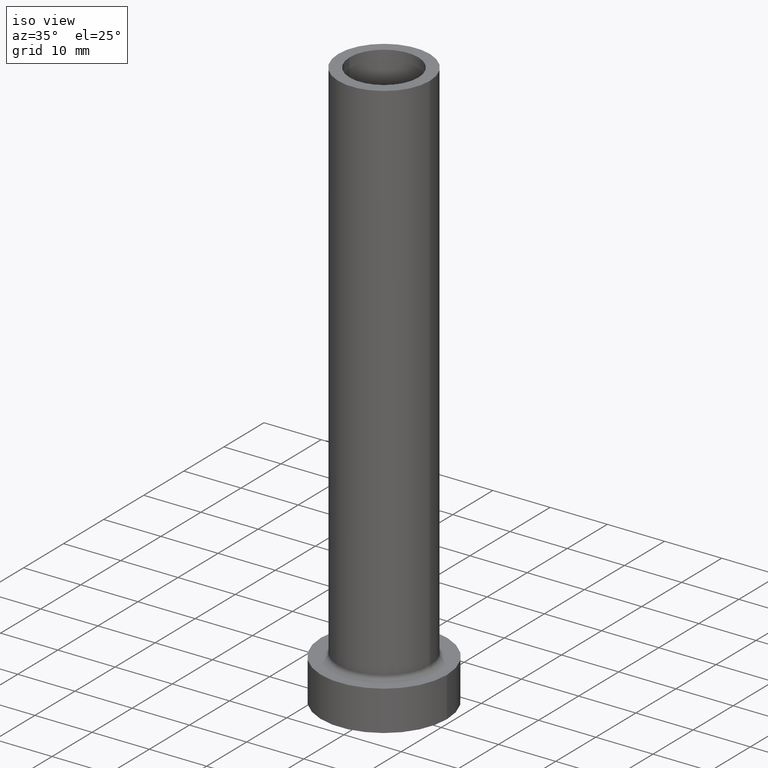
[diagram: clean part render]
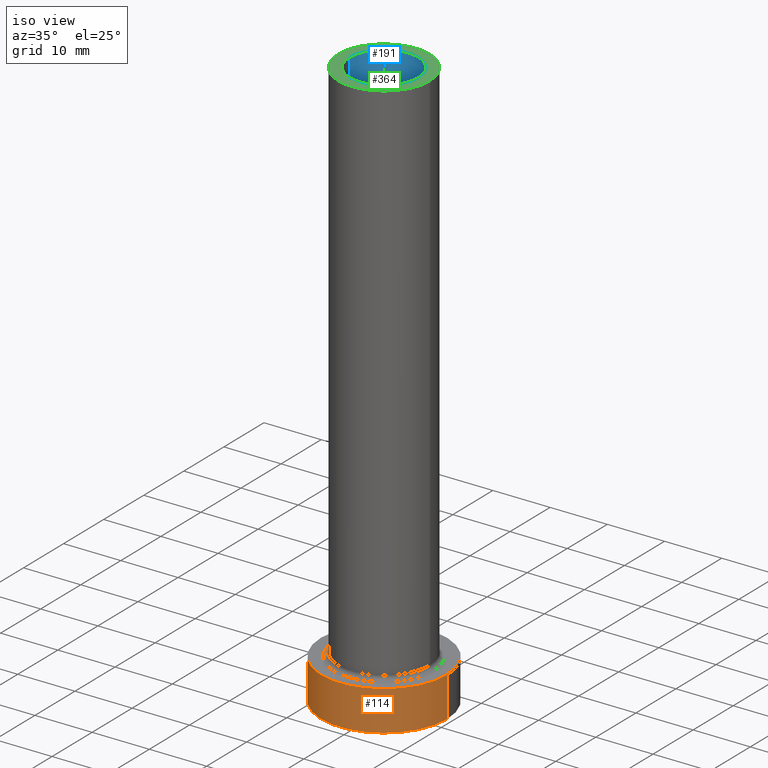
[diagram: same view with three faces highlighted in distinct colors, each labeled with its STEP entity id]
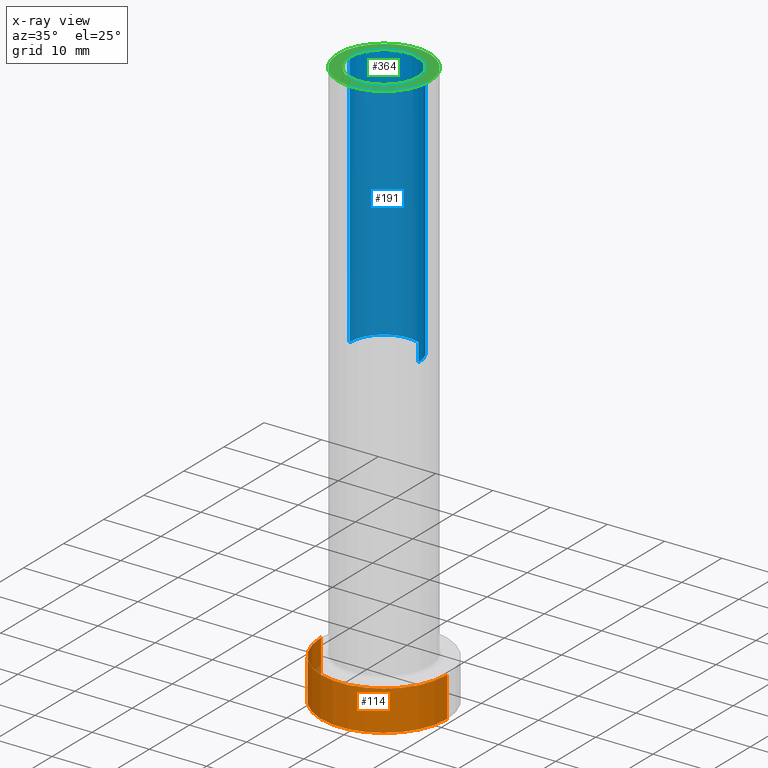
[diagram: x-ray of the same camera — body ghosted, the three highlighted faces saturated]
A machine part, iso view with three faces highlighted in distinct colors.
The next image is the same camera in x-ray (body ghosted, the three faces saturated) — at least one of them is partly hidden behind the body in this view.
Their STEP definitions:

[orange] entity #114 — the highlighted cylindrical surface (partial cylindrical patch) has radius 11 mm, axis along (-0, -0, -1).
#5 = LINE ( 'NONE', #253, #378 ) ;
#11 = VERTEX_POINT ( 'NONE', #305 ) ;
#17 = DIRECTION ( 'NONE',  ( 0.000000000000000000, 0.000000000000000000, 1.000000000000000000 ) ) ;
#45 = VERTEX_POINT ( 'NONE', #363 ) ;
#61 = EDGE_CURVE ( 'NONE', #126, #320, #243, .T. ) ;
#69 = AXIS2_PLACEMENT_3D ( 'NONE', #429, #327, #351 ) ;
#103 = CARTESIAN_POINT ( 'NONE',  ( -11.00000000000000000, 0.000000000000000000, 7.000000000000000000 ) ) ;
#109 = EDGE_CURVE ( 'NONE', #126, #45, #192, .T. ) ;
#114 = ADVANCED_FACE ( 'NONE', ( #331 ), #258, .T. ) ;
#126 = VERTEX_POINT ( 'NONE', #103 ) ;
#150 = CARTESIAN_POINT ( 'NONE',  ( 11.00000000000000000, 1.347111479062088405E-15, 7.000000000000000000 ) ) ;
#159 = CARTESIAN_POINT ( 'NONE',  ( 0.000000000000000000, 0.000000000000000000, 7.000000000000000000 ) ) ;
#192 = LINE ( 'NONE', #439, #310 ) ;
#232 = EDGE_LOOP ( 'NONE', ( #428, #354, #328, #256 ) ) ;
#243 = CIRCLE ( 'NONE', #448, 11.00000000000000000 ) ;
#253 = CARTESIAN_POINT ( 'NONE',  ( 11.00000000000000000, 1.347111479062088405E-15, 7.000000000000000000 ) ) ;
#256 = ORIENTED_EDGE ( 'NONE', *, *, #292, .T. ) ;
#258 = CYLINDRICAL_SURFACE ( 'NONE', #276, 11.00000000000000000 ) ;
#268 = DIRECTION ( 'NONE',  ( -1.000000000000000000, 0.000000000000000000, 0.000000000000000000 ) ) ;
#276 = AXIS2_PLACEMENT_3D ( 'NONE', #159, #415, #268 ) ;
#281 = DIRECTION ( 'NONE',  ( -0.000000000000000000, -0.000000000000000000, -1.000000000000000000 ) ) ;
#292 = EDGE_CURVE ( 'NONE', #45, #11, #349, .T. ) ;
#305 = CARTESIAN_POINT ( 'NONE',  ( 11.00000000000000000, 1.347111479062088405E-15, 0.000000000000000000 ) ) ;
#310 = VECTOR ( 'NONE', #412, 1000.000000000000000 ) ;
#320 = VERTEX_POINT ( 'NONE', #150 ) ;
#327 = DIRECTION ( 'NONE',  ( 0.000000000000000000, 0.000000000000000000, 1.000000000000000000 ) ) ;
#328 = ORIENTED_EDGE ( 'NONE', *, *, #109, .T. ) ;
#331 = FACE_OUTER_BOUND ( 'NONE', #232, .T. ) ;
#334 = CARTESIAN_POINT ( 'NONE',  ( 0.000000000000000000, 0.000000000000000000, 7.000000000000000000 ) ) ;
#337 = DIRECTION ( 'NONE',  ( 1.000000000000000000, 0.000000000000000000, 0.000000000000000000 ) ) ;
#349 = CIRCLE ( 'NONE', #69, 11.00000000000000000 ) ;
#351 = DIRECTION ( 'NONE',  ( 1.000000000000000000, 0.000000000000000000, 0.000000000000000000 ) ) ;
#354 = ORIENTED_EDGE ( 'NONE', *, *, #61, .F. ) ;
#363 = CARTESIAN_POINT ( 'NONE',  ( -11.00000000000000000, 0.000000000000000000, 0.000000000000000000 ) ) ;
#378 = VECTOR ( 'NONE', #281, 1000.000000000000000 ) ;
#381 = EDGE_CURVE ( 'NONE', #320, #11, #5, .T. ) ;
#412 = DIRECTION ( 'NONE',  ( -0.000000000000000000, -0.000000000000000000, -1.000000000000000000 ) ) ;
#415 = DIRECTION ( 'NONE',  ( -0.000000000000000000, -0.000000000000000000, -1.000000000000000000 ) ) ;
#428 = ORIENTED_EDGE ( 'NONE', *, *, #381, .F. ) ;
#429 = CARTESIAN_POINT ( 'NONE',  ( 0.000000000000000000, 0.000000000000000000, 0.000000000000000000 ) ) ;
#439 = CARTESIAN_POINT ( 'NONE',  ( -11.00000000000000000, 0.000000000000000000, 7.000000000000000000 ) ) ;
#448 = AXIS2_PLACEMENT_3D ( 'NONE', #334, #17, #337 ) ;

[blue] entity #191 — the highlighted cylindrical surface (partial cylindrical patch) has radius 6 mm, axis along (0, 0, -1).
#3 = DIRECTION ( 'NONE',  ( 1.000000000000000000, 0.000000000000000000, 0.000000000000000000 ) ) ;
#9 = CIRCLE ( 'NONE', #139, 6.000000000000000888 ) ;
#33 = CARTESIAN_POINT ( 'NONE',  ( 0.000000000000000000, 0.000000000000000000, 55.00000000000000711 ) ) ;
#65 = EDGE_CURVE ( 'NONE', #430, #151, #163, .T. ) ;
#66 = CYLINDRICAL_SURFACE ( 'NONE', #416, 6.000000000000000888 ) ;
#90 = AXIS2_PLACEMENT_3D ( 'NONE', #33, #275, #421 ) ;
#116 = EDGE_LOOP ( 'NONE', ( #369, #223, #287, #359 ) ) ;
#131 = DIRECTION ( 'NONE',  ( 0.000000000000000000, 0.000000000000000000, -1.000000000000000000 ) ) ;
#134 = DIRECTION ( 'NONE',  ( 0.000000000000000000, 0.000000000000000000, -1.000000000000000000 ) ) ;
#139 = AXIS2_PLACEMENT_3D ( 'NONE', #285, #427, #3 ) ;
#151 = VERTEX_POINT ( 'NONE', #201 ) ;
#154 = VERTEX_POINT ( 'NONE', #340 ) ;
#163 = LINE ( 'NONE', #447, #208 ) ;
#191 = ADVANCED_FACE ( 'NONE', ( #206 ), #66, .F. ) ;
#201 = CARTESIAN_POINT ( 'NONE',  ( 6.000000000000000888, 7.347880794884119736E-16, 55.00000000000000711 ) ) ;
#206 = FACE_OUTER_BOUND ( 'NONE', #116, .T. ) ;
#208 = VECTOR ( 'NONE', #131, 1000.000000000000000 ) ;
#213 = CARTESIAN_POINT ( 'NONE',  ( 6.000000000000000888, 7.347880794884119736E-16, 100.0000000000000000 ) ) ;
#219 = CARTESIAN_POINT ( 'NONE',  ( -6.000000000000000888, 0.000000000000000000, 100.0000000000000000 ) ) ;
#223 = ORIENTED_EDGE ( 'NONE', *, *, #322, .T. ) ;
#242 = DIRECTION ( 'NONE',  ( -1.000000000000000000, 0.000000000000000000, 0.000000000000000000 ) ) ;
#275 = DIRECTION ( 'NONE',  ( 0.000000000000000000, 0.000000000000000000, 1.000000000000000000 ) ) ;
#277 = EDGE_CURVE ( 'NONE', #151, #154, #385, .T. ) ;
#285 = CARTESIAN_POINT ( 'NONE',  ( 0.000000000000000000, 0.000000000000000000, 100.0000000000000000 ) ) ;
#287 = ORIENTED_EDGE ( 'NONE', *, *, #442, .T. ) ;
#322 = EDGE_CURVE ( 'NONE', #430, #392, #9, .T. ) ;
#332 = DIRECTION ( 'NONE',  ( 0.000000000000000000, 0.000000000000000000, -1.000000000000000000 ) ) ;
#340 = CARTESIAN_POINT ( 'NONE',  ( -6.000000000000000888, 0.000000000000000000, 55.00000000000000711 ) ) ;
#355 = VECTOR ( 'NONE', #332, 1000.000000000000000 ) ;
#359 = ORIENTED_EDGE ( 'NONE', *, *, #277, .F. ) ;
#362 = LINE ( 'NONE', #401, #355 ) ;
#369 = ORIENTED_EDGE ( 'NONE', *, *, #65, .F. ) ;
#385 = CIRCLE ( 'NONE', #90, 6.000000000000000888 ) ;
#392 = VERTEX_POINT ( 'NONE', #219 ) ;
#401 = CARTESIAN_POINT ( 'NONE',  ( -6.000000000000000888, 0.000000000000000000, 100.0000000000000000 ) ) ;
#416 = AXIS2_PLACEMENT_3D ( 'NONE', #450, #134, #242 ) ;
#421 = DIRECTION ( 'NONE',  ( 1.000000000000000000, 0.000000000000000000, 0.000000000000000000 ) ) ;
#427 = DIRECTION ( 'NONE',  ( 0.000000000000000000, 0.000000000000000000, 1.000000000000000000 ) ) ;
#430 = VERTEX_POINT ( 'NONE', #213 ) ;
#442 = EDGE_CURVE ( 'NONE', #392, #154, #362, .T. ) ;
#447 = CARTESIAN_POINT ( 'NONE',  ( 6.000000000000000888, 7.347880794884119736E-16, 100.0000000000000000 ) ) ;
#450 = CARTESIAN_POINT ( 'NONE',  ( 0.000000000000000000, 0.000000000000000000, 100.0000000000000000 ) ) ;

[green] entity #364 — the highlighted planar face has unit normal (0, 0, 1).
#2 = ORIENTED_EDGE ( 'NONE', *, *, #390, .F. ) ;
#3 = DIRECTION ( 'NONE',  ( 1.000000000000000000, 0.000000000000000000, 0.000000000000000000 ) ) ;
#6 = VERTEX_POINT ( 'NONE', #13 ) ;
#9 = CIRCLE ( 'NONE', #139, 6.000000000000000888 ) ;
#13 = CARTESIAN_POINT ( 'NONE',  ( 8.000000000000000000, 9.797174393178823685E-16, 100.0000000000000000 ) ) ;
#24 = CIRCLE ( 'NONE', #152, 8.000000000000000000 ) ;
#30 = CARTESIAN_POINT ( 'NONE',  ( 0.000000000000000000, 0.000000000000000000, 100.0000000000000000 ) ) ;
#34 = DIRECTION ( 'NONE',  ( 0.000000000000000000, 0.000000000000000000, 1.000000000000000000 ) ) ;
#79 = DIRECTION ( 'NONE',  ( 1.000000000000000000, 0.000000000000000000, 0.000000000000000000 ) ) ;
#84 = AXIS2_PLACEMENT_3D ( 'NONE', #319, #34, #79 ) ;
#112 = CARTESIAN_POINT ( 'NONE',  ( 0.000000000000000000, 0.000000000000000000, 100.0000000000000000 ) ) ;
#113 = EDGE_LOOP ( 'NONE', ( #230, #162 ) ) ;
#115 = DIRECTION ( 'NONE',  ( 1.000000000000000000, 0.000000000000000000, 0.000000000000000000 ) ) ;
#119 = PLANE ( 'NONE',  #215 ) ;
#137 = CIRCLE ( 'NONE', #195, 8.000000000000000000 ) ;
#139 = AXIS2_PLACEMENT_3D ( 'NONE', #285, #427, #3 ) ;
#140 = DIRECTION ( 'NONE',  ( 1.000000000000000000, 0.000000000000000000, 0.000000000000000000 ) ) ;
#152 = AXIS2_PLACEMENT_3D ( 'NONE', #432, #177, #115 ) ;
#153 = FACE_OUTER_BOUND ( 'NONE', #113, .T. ) ;
#162 = ORIENTED_EDGE ( 'NONE', *, *, #266, .T. ) ;
#171 = DIRECTION ( 'NONE',  ( 0.000000000000000000, 0.000000000000000000, 1.000000000000000000 ) ) ;
#177 = DIRECTION ( 'NONE',  ( 0.000000000000000000, 0.000000000000000000, 1.000000000000000000 ) ) ;
#195 = AXIS2_PLACEMENT_3D ( 'NONE', #30, #171, #140 ) ;
#213 = CARTESIAN_POINT ( 'NONE',  ( 6.000000000000000888, 7.347880794884119736E-16, 100.0000000000000000 ) ) ;
#215 = AXIS2_PLACEMENT_3D ( 'NONE', #112, #250, #358 ) ;
#217 = CARTESIAN_POINT ( 'NONE',  ( -8.000000000000000000, 0.000000000000000000, 100.0000000000000000 ) ) ;
#219 = CARTESIAN_POINT ( 'NONE',  ( -6.000000000000000888, 0.000000000000000000, 100.0000000000000000 ) ) ;
#220 = ORIENTED_EDGE ( 'NONE', *, *, #322, .F. ) ;
#230 = ORIENTED_EDGE ( 'NONE', *, *, #352, .T. ) ;
#250 = DIRECTION ( 'NONE',  ( 0.000000000000000000, 0.000000000000000000, 1.000000000000000000 ) ) ;
#259 = CIRCLE ( 'NONE', #84, 6.000000000000000888 ) ;
#266 = EDGE_CURVE ( 'NONE', #6, #365, #137, .T. ) ;
#285 = CARTESIAN_POINT ( 'NONE',  ( 0.000000000000000000, 0.000000000000000000, 100.0000000000000000 ) ) ;
#289 = FACE_BOUND ( 'NONE', #317, .T. ) ;
#317 = EDGE_LOOP ( 'NONE', ( #2, #220 ) ) ;
#319 = CARTESIAN_POINT ( 'NONE',  ( 0.000000000000000000, 0.000000000000000000, 100.0000000000000000 ) ) ;
#322 = EDGE_CURVE ( 'NONE', #430, #392, #9, .T. ) ;
#352 = EDGE_CURVE ( 'NONE', #365, #6, #24, .T. ) ;
#358 = DIRECTION ( 'NONE',  ( 1.000000000000000000, 0.000000000000000000, -0.000000000000000000 ) ) ;
#364 = ADVANCED_FACE ( 'NONE', ( #289, #153 ), #119, .T. ) ;
#365 = VERTEX_POINT ( 'NONE', #217 ) ;
#390 = EDGE_CURVE ( 'NONE', #392, #430, #259, .T. ) ;
#392 = VERTEX_POINT ( 'NONE', #219 ) ;
#427 = DIRECTION ( 'NONE',  ( 0.000000000000000000, 0.000000000000000000, 1.000000000000000000 ) ) ;
#430 = VERTEX_POINT ( 'NONE', #213 ) ;
#432 = CARTESIAN_POINT ( 'NONE',  ( 0.000000000000000000, 0.000000000000000000, 100.0000000000000000 ) ) ;